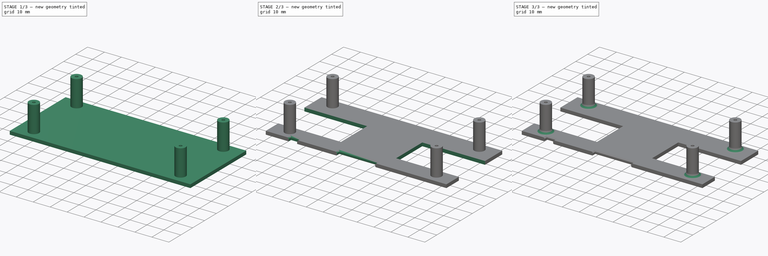
[diagram: build sequence overview — one tinted view per stage of 3, left to right]
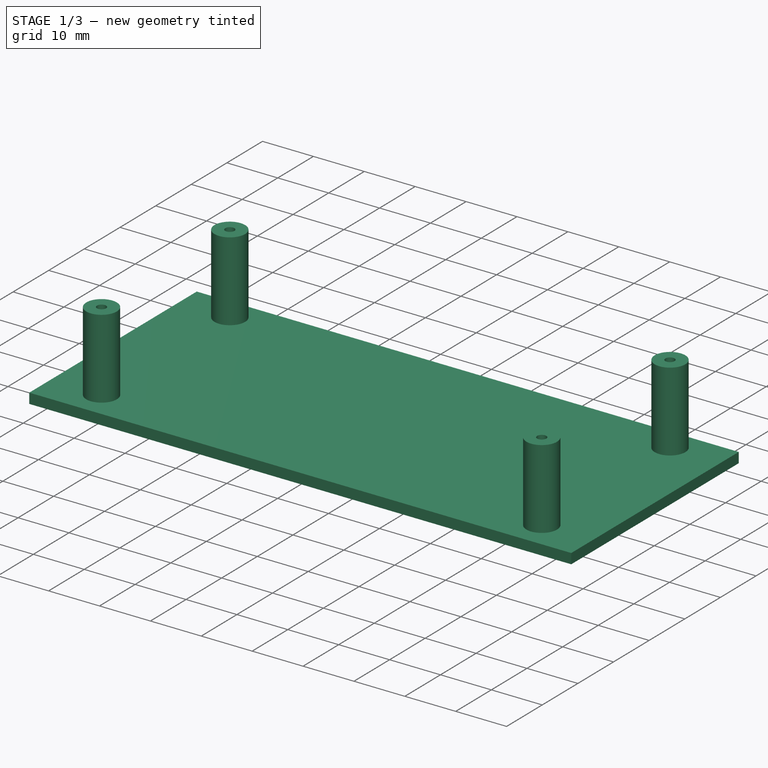
[diagram: stage 1 of 3 — iso view after this stage's code; geometry added in this stage tinted green]
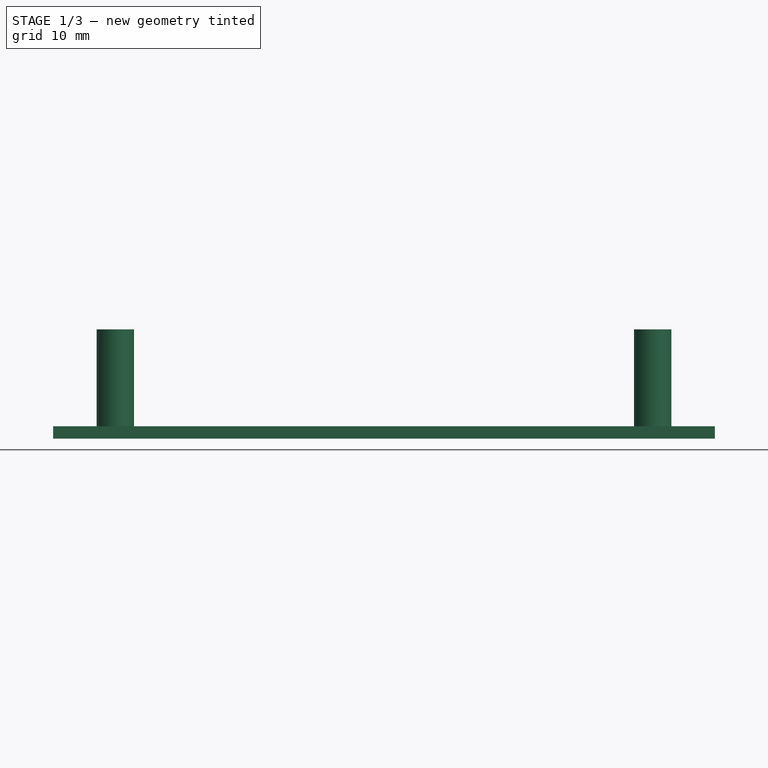
[diagram: stage 1 of 3 — front view after this stage's code; geometry added in this stage tinted green]
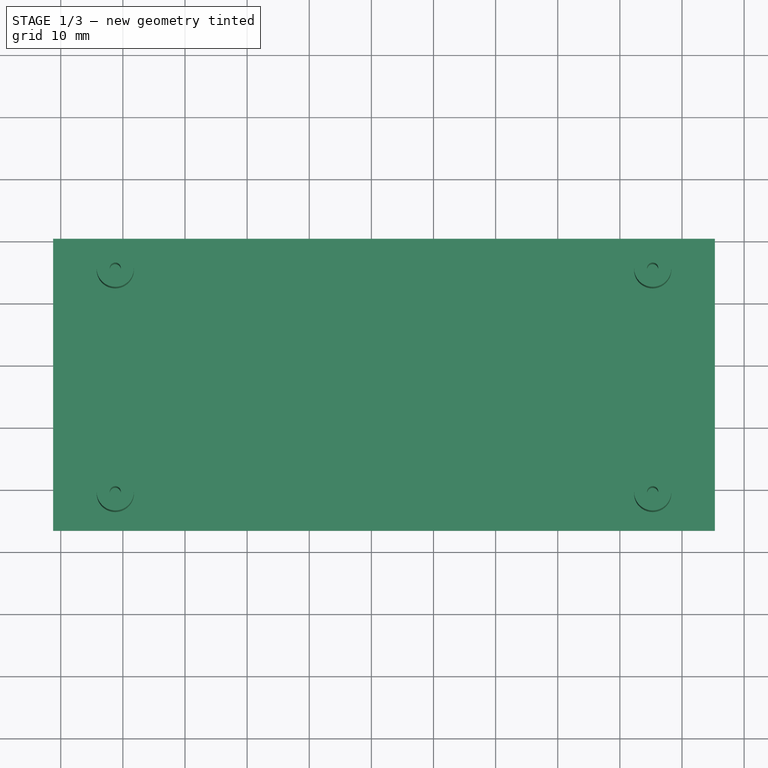
[diagram: stage 1 of 3 — top view after this stage's code; geometry added in this stage tinted green]
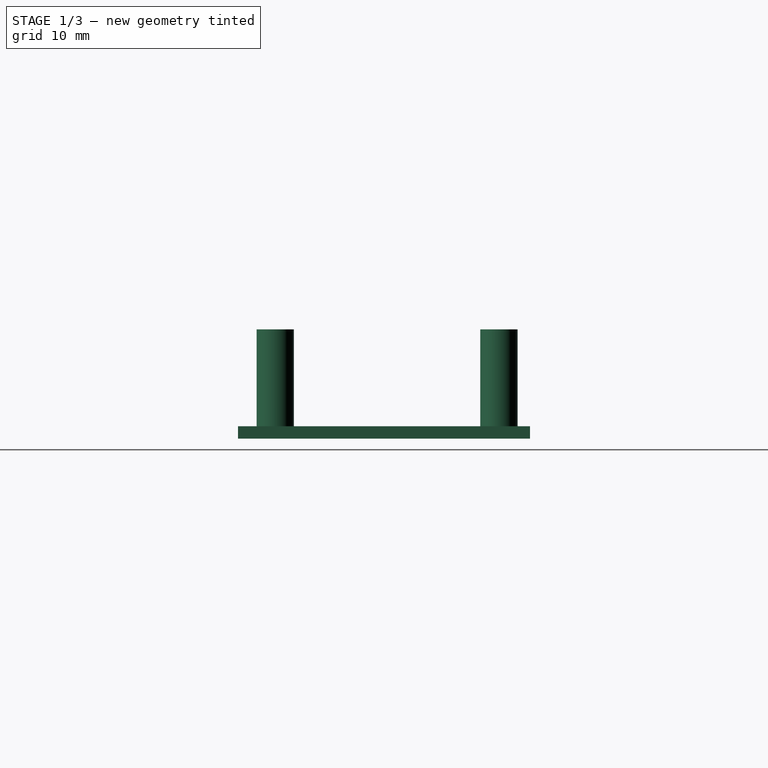
[diagram: stage 1 of 3 — right view after this stage's code; geometry added in this stage tinted green]
FCSTD DOCUMENT  (FreeCAD 0.15R4671 (Git))
Label: table_part
License: All rights reserved
LicenseURL: http://en.wikipedia.org/wiki/All_rights_reserved
objects: Sketcher::SketchObject×3, PartDesign::Fillet×3, PartDesign::Pad×2, PartDesign::Pocket×1, PartDesign::Chamfer×1, Part::Feature×1
note: 14 computed .brp shape members not serialized (recipe doc carries the construction recipe); baked Part::Feature solids carry a one-line shape summary decoded from their .brp

FEATURE [Sketcher::SketchObject] Sketch
  sketch-geometry (4):
    g0: LineSegment StartX=-21.2137 StartY=10.4405 StartZ=0 EndX=85.2863 EndY=10.4405 EndZ=0
    g1: LineSegment StartX=85.2863 StartY=10.4405 StartZ=0 EndX=85.2863 EndY=-36.5595 EndZ=0
    g2: LineSegment StartX=85.2863 StartY=-36.5595 StartZ=0 EndX=-21.2137 EndY=-36.5595 EndZ=0
    g3: LineSegment StartX=-21.2137 StartY=-36.5595 StartZ=0 EndX=-21.2137 EndY=10.4405 EndZ=0
  constraints (10):
    c: Coincident(g0,g1)
    c: Coincident(g1,g2)
    c: Coincident(g2,g3)
    c: Coincident(g3,g0)
    c: Horizontal(g0)
    c: Horizontal(g2)
    c: Vertical(g1)
    c: Vertical(g3)
    c: Distance(g0) = 106.5
    c: Distance(g3) = 47
FEATURE [PartDesign::Pad] Pad
  Length = 2
  Length2 = 100
  Sketch = -> Sketch
  Type = 0
FEATURE [Sketcher::SketchObject] Sketch001
  ExternalGeometry = -> [Pad]
  Placement = pos=(0,0,2) rot=(0,0,1;0rad)
  Support = -> Pad [Face6]
  sketch-geometry (8):
    g0: Circle CenterX=-11.2137 CenterY=5.4405 CenterZ=0 NormalX=0 NormalY=0 NormalZ=1 Radius=0.9
    g1: Circle CenterX=-11.2137 CenterY=-30.5595 CenterZ=0 NormalX=0 NormalY=0 NormalZ=1 Radius=0.9
    g2: Circle CenterX=75.2863 CenterY=5.4405 CenterZ=0 NormalX=0 NormalY=0 NormalZ=1 Radius=0.9
    g3: Circle CenterX=75.2863 CenterY=-30.5595 CenterZ=0 NormalX=0 NormalY=0 NormalZ=1 Radius=0.9
    g4: Circle CenterX=75.2863 CenterY=5.4405 CenterZ=0 NormalX=0 NormalY=0 NormalZ=1 Radius=3
    g5: Circle CenterX=-11.2137 CenterY=5.4405 CenterZ=0 NormalX=0 NormalY=0 NormalZ=1 Radius=3
    g6: Circle CenterX=-11.2137 CenterY=-30.5595 CenterZ=0 NormalX=0 NormalY=0 NormalZ=1 Radius=3
    g7: Circle CenterX=75.2863 CenterY=-30.5595 CenterZ=0 NormalX=0 NormalY=0 NormalZ=1 Radius=3
  constraints (19):
    c: DistanceX(g0,g-5) = -10
    c: DistanceY(g0,g-5) = 5
    c: Radius(g0) = 0.9
    c: DistanceX(g1,g-5) = -10
    c: Radius(g1) = 0.9
    c: DistanceX(g2,g-4) = 10
    c: DistanceY(g2,g-4) = 5
    c: Radius(g2) = 0.9
    c: Radius(g3) = 0.9
    c: Coincident(g4,g2)
    c: Radius(g4) = 3
    c: Coincident(g5,g0)
    c: Radius(g5) = 3
    c: Coincident(g6,g1)
    c: Radius(g6) = 3
    c: Coincident(g7,g3)
    c: Radius(g7) = 3
    c: DistanceY(g1,g0) = 36
    c: DistanceY(g3,g2) = 36
FEATURE [PartDesign::Pad] Pad001
  Length = 15.6
  Length2 = 100
  Sketch = -> Sketch001
  Type = 0
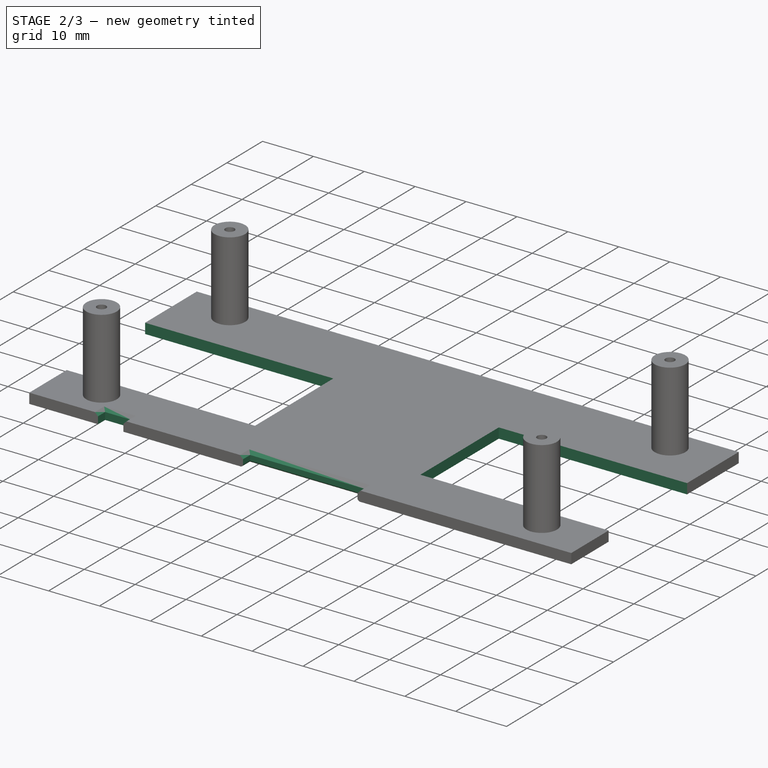
[diagram: stage 2 of 3 — iso view after this stage's code; geometry added in this stage tinted green]
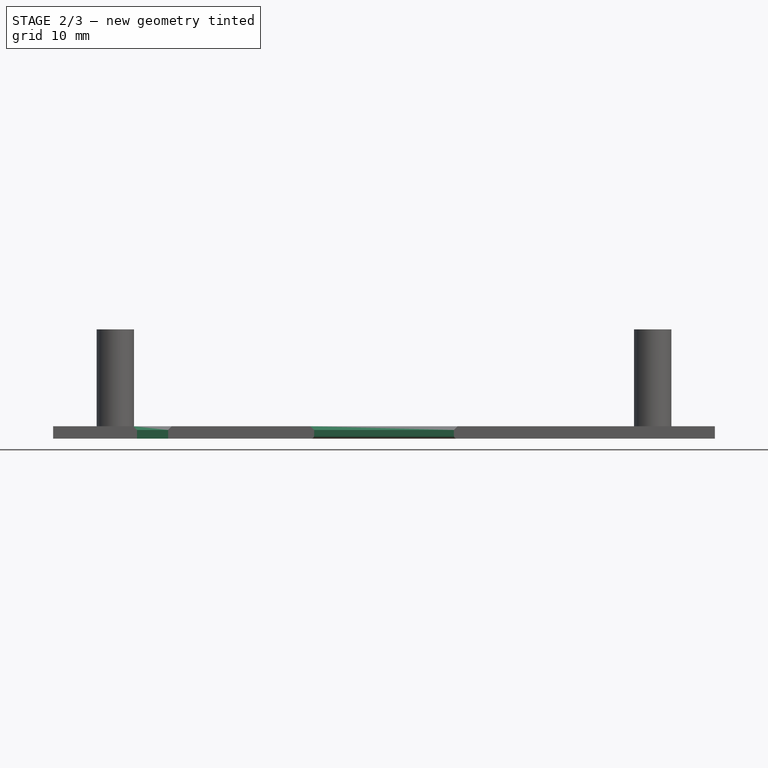
[diagram: stage 2 of 3 — front view after this stage's code; geometry added in this stage tinted green]
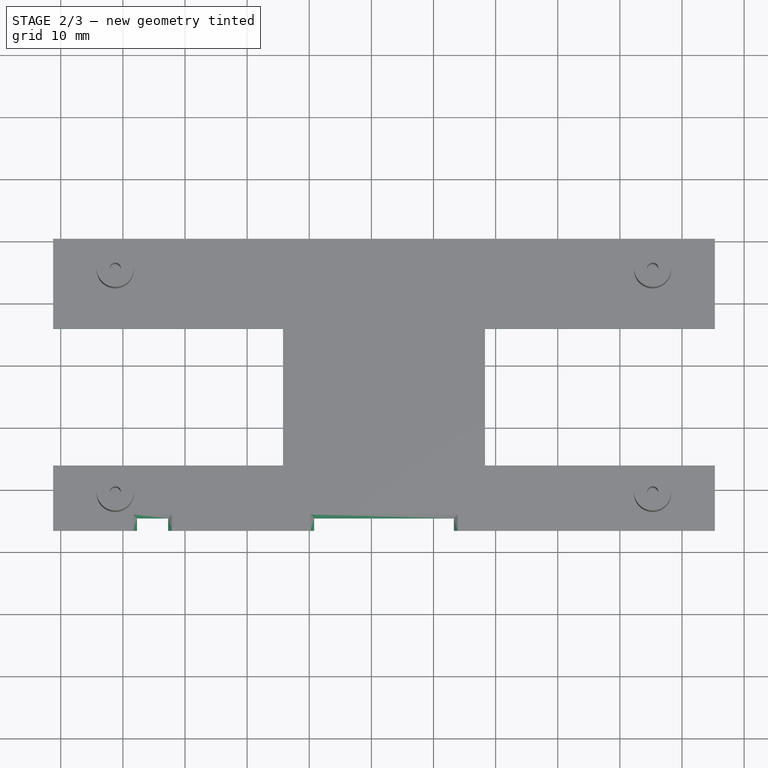
[diagram: stage 2 of 3 — top view after this stage's code; geometry added in this stage tinted green]
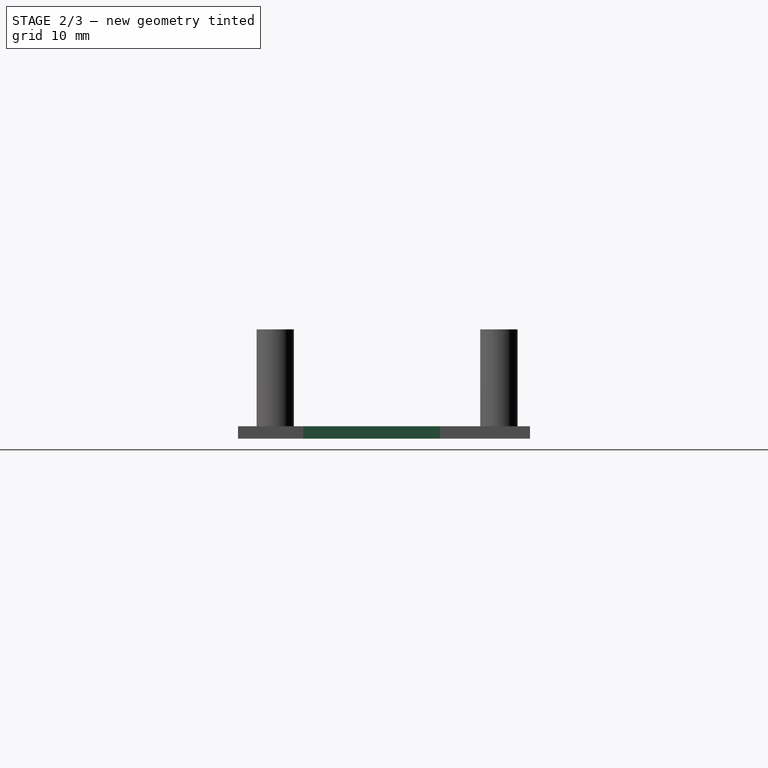
[diagram: stage 2 of 3 — right view after this stage's code; geometry added in this stage tinted green]
FEATURE [Sketcher::SketchObject] Sketch002
  ExternalGeometry = -> [Pad001]
  Placement = pos=(0,0,2) rot=(0,0,1;0rad)
  Support = -> Pad001 [Face5]
  sketch-geometry (16):
    g0: LineSegment StartX=20.7863 StartY=-34.5595 StartZ=0 EndX=43.2863 EndY=-34.5595 EndZ=0
    g1: LineSegment StartX=43.2863 StartY=-34.5595 StartZ=0 EndX=43.2863 EndY=-36.5595 EndZ=0
    g2: LineSegment StartX=43.2863 StartY=-36.5595 StartZ=0 EndX=20.7863 EndY=-36.5595 EndZ=0
    g3: LineSegment StartX=20.7863 StartY=-36.5595 StartZ=0 EndX=20.7863 EndY=-34.5595 EndZ=0
    g4: LineSegment StartX=-7.71373 StartY=-34.5595 StartZ=0 EndX=-2.71373 EndY=-34.5595 EndZ=0
    g5: LineSegment StartX=-2.71373 StartY=-34.5595 StartZ=0 EndX=-2.71373 EndY=-36.5595 EndZ=0
    g6: LineSegment StartX=-2.71373 StartY=-36.5595 StartZ=0 EndX=-7.71373 EndY=-36.5595 EndZ=0
    g7: LineSegment StartX=-7.71373 StartY=-36.5595 StartZ=0 EndX=-7.71373 EndY=-34.5595 EndZ=0
    g8: LineSegment StartX=-21.2137 StartY=-4.0595 StartZ=0 EndX=15.7863 EndY=-4.0595 EndZ=0
    g9: LineSegment StartX=15.7863 StartY=-4.0595 StartZ=0 EndX=15.7863 EndY=-26.0595 EndZ=0
    g10: LineSegment StartX=15.7863 StartY=-26.0595 StartZ=0 EndX=-21.2137 EndY=-26.0595 EndZ=0
    g11: LineSegment StartX=-21.2137 StartY=-26.0595 StartZ=0 EndX=-21.2137 EndY=-4.0595 EndZ=0
    g12: LineSegment StartX=48.2863 StartY=-4.0595 StartZ=0 EndX=85.2863 EndY=-4.0595 EndZ=0
    g13: LineSegment StartX=85.2863 StartY=-4.0595 StartZ=0 EndX=85.2863 EndY=-26.0595 EndZ=0
    g14: LineSegment StartX=85.2863 StartY=-26.0595 StartZ=0 EndX=48.2863 EndY=-26.0595 EndZ=0
    g15: LineSegment StartX=48.2863 StartY=-26.0595 StartZ=0 EndX=48.2863 EndY=-4.0595 EndZ=0
  constraints (48):
    c: Coincident(g0,g1)
    c: Coincident(g1,g2)
    c: Coincident(g2,g3)
    c: Coincident(g3,g0)
    c: Horizontal(g0)
    c: Horizontal(g2)
    c: Vertical(g1)
    c: Vertical(g3)
    c: Distance(g0) = 22.5
    c: DistanceY(g3) = 2
    c: DistanceX(g2,g-5) = -42
    c: DistanceY(g-5,g2) = 0
    c: Coincident(g4,g5)
    c: Coincident(g5,g6)
    c: Coincident(g6,g7)
    c: Coincident(g7,g4)
    c: Horizontal(g4)
    c: Horizontal(g6)
    c: Vertical(g5)
    c: Vertical(g7)
    c: Distance(g4) = 5
    c: Distance(g7) = 2
    c: DistanceX(g6,g-5) = -13.5
    c: DistanceY(g6,g-5) = 0
    c: Coincident(g8,g9)
    c: Coincident(g9,g10)
    c: Coincident(g10,g11)
    c: Coincident(g11,g8)
    c: Horizontal(g8)
    c: Horizontal(g10)
    c: Vertical(g9)
    c: Vertical(g11)
    c: Distance(g8) = 37
    c: Distance(g9) = 22
    c: DistanceY(g8,g-6) = 14.5
    c: DistanceX(g8,g-6) = 0
    c: Coincident(g12,g13)
    c: Coincident(g13,g14)
    c: Coincident(g14,g15)
    c: Coincident(g15,g12)
    c: Horizontal(g12)
    c: Horizontal(g14)
    c: Vertical(g13)
    c: Vertical(g15)
    c: Distance(g15) = 22
    c: Distance(g12) = 37
    c: DistanceY(g12,g-6) = 14.5
    c: DistanceX(g12,g-6) = 0
FEATURE [PartDesign::Pocket] Pocket
  Length = 5
  Sketch = -> Sketch002
  Type = 0
FEATURE [PartDesign::Chamfer] Chamfer
  Base = -> Pocket [Edge38,Edge39,Edge37,Edge35,Edge34,Edge33]
  Size = 0.6
FEATURE [PartDesign::Fillet] Fillet
  Base = -> Chamfer [Edge79,Edge80,Edge77]
  Radius = 0.5
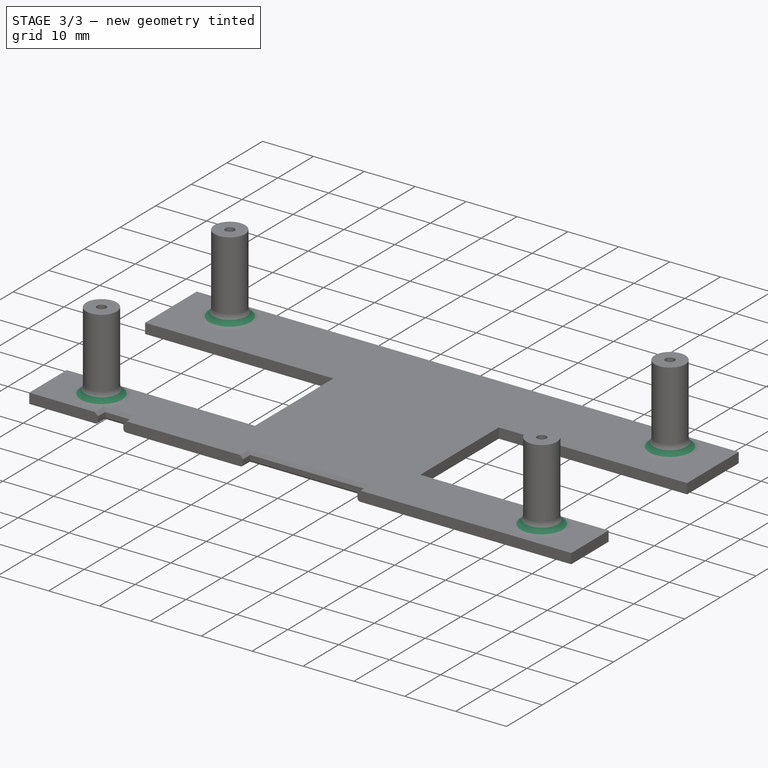
[diagram: stage 3 of 3 — iso view after this stage's code; geometry added in this stage tinted green]
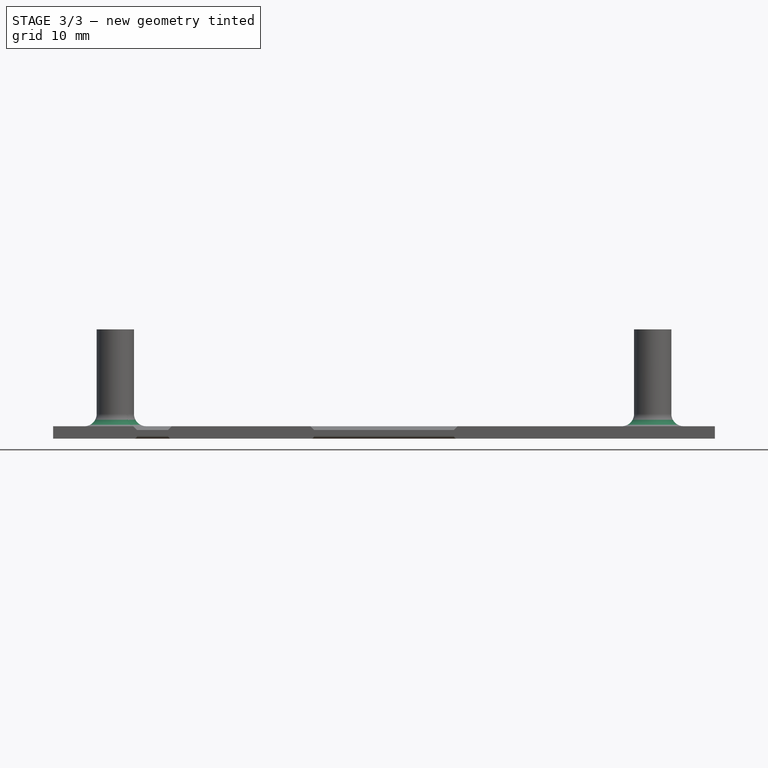
[diagram: stage 3 of 3 — front view after this stage's code; geometry added in this stage tinted green]
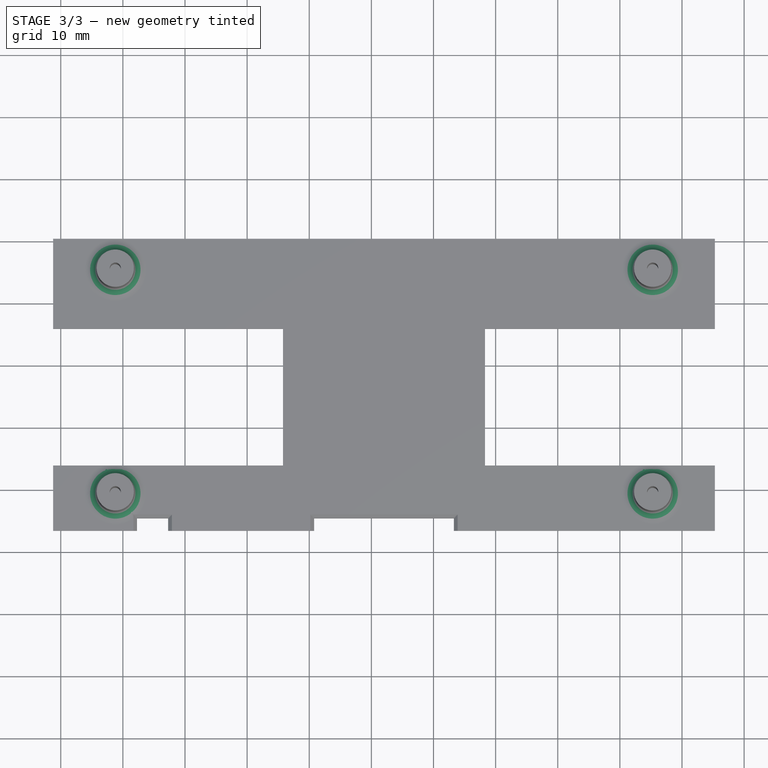
[diagram: stage 3 of 3 — top view after this stage's code; geometry added in this stage tinted green]
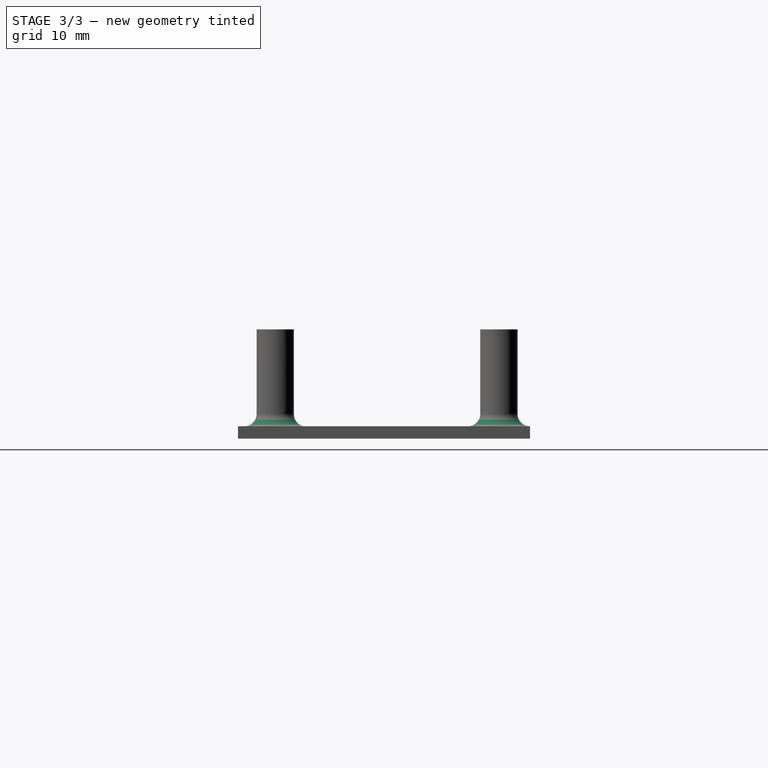
[diagram: stage 3 of 3 — right view after this stage's code; geometry added in this stage tinted green]
FEATURE [PartDesign::Fillet] Fillet001
  Base = -> Fillet [Edge25,Edge23,Edge21]
  Radius = 0.5
FEATURE [PartDesign::Fillet] Fillet002
  Base = -> Fillet001 [Edge83,Edge81,Edge82,Edge84]
  Radius = 2
FEATURE [Part::Feature] Fillet002_solid  label="Fillet002 (Solid)"
  shape: bbox 106.5 x 48.36 x 17.6 mm, 62 faces (baked)
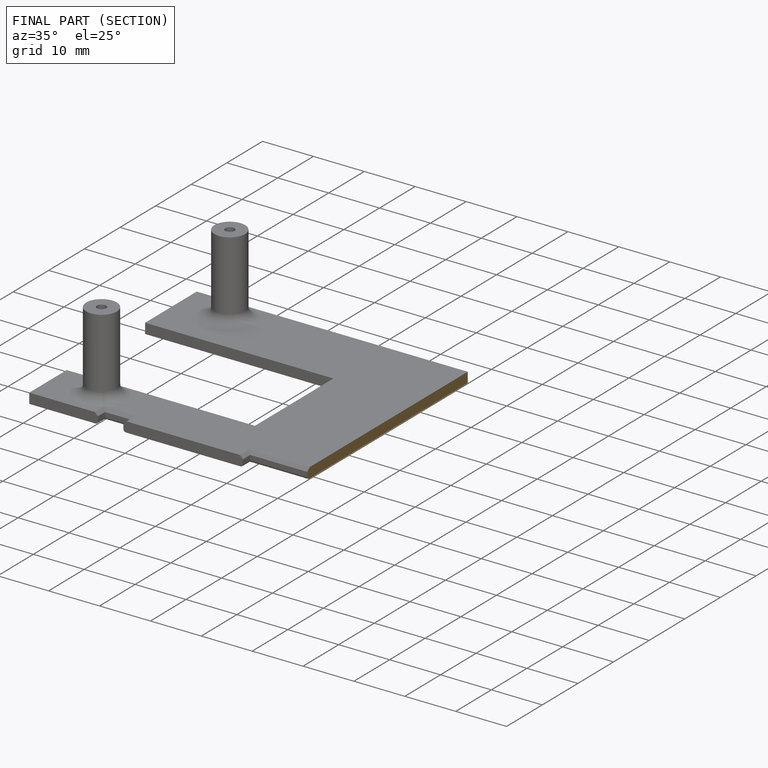
[diagram: finished part — half-section view (interior)]
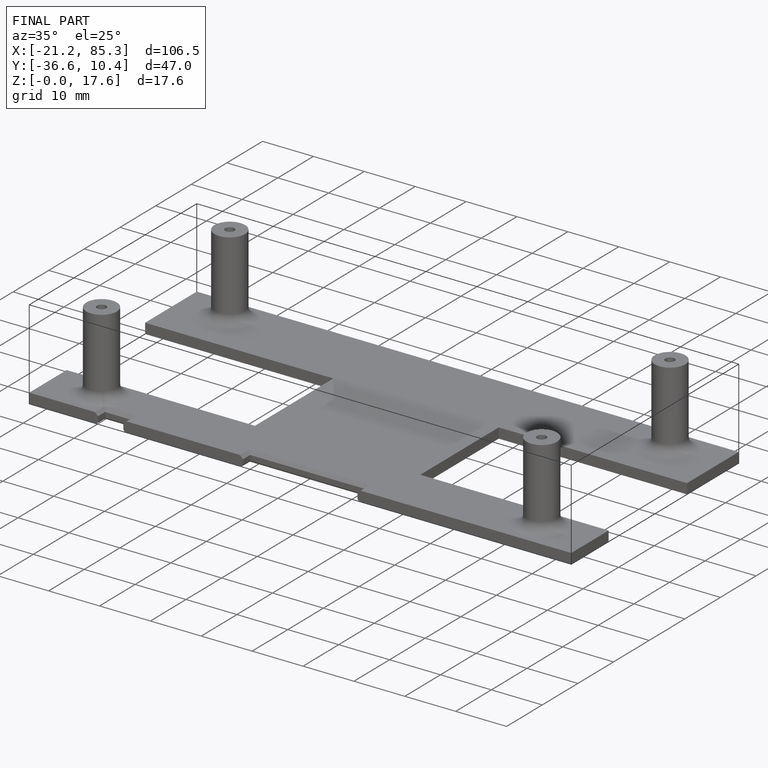
[diagram: finished part — iso view with bounding-box wireframe]
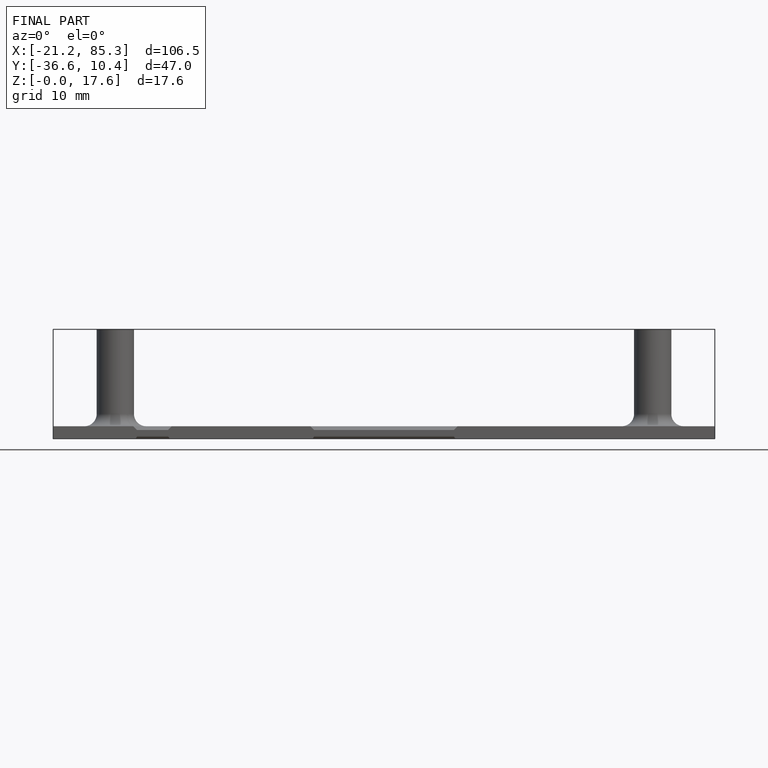
[diagram: finished part — front view with bounding-box wireframe]
